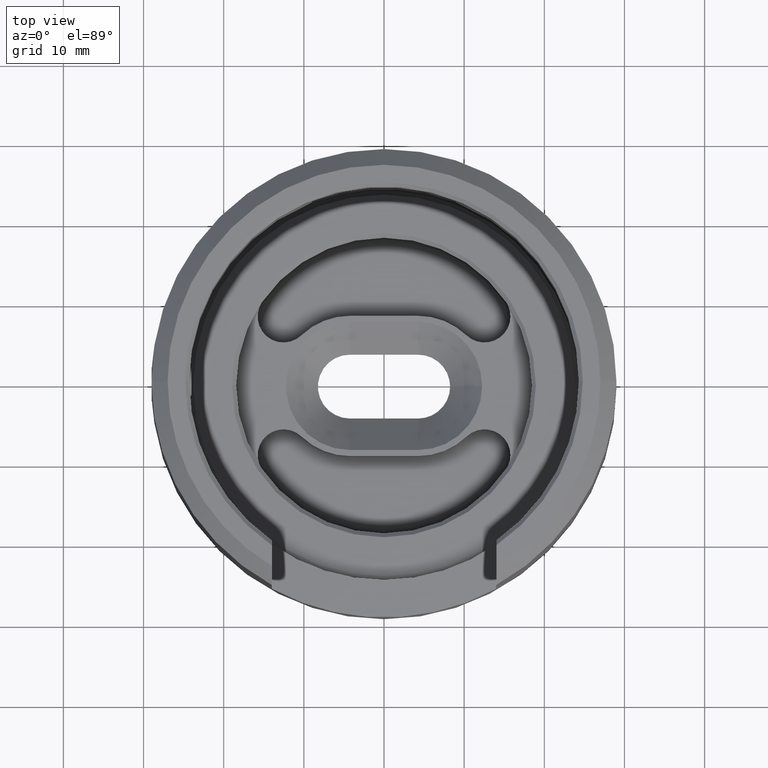
[diagram: clean part render]
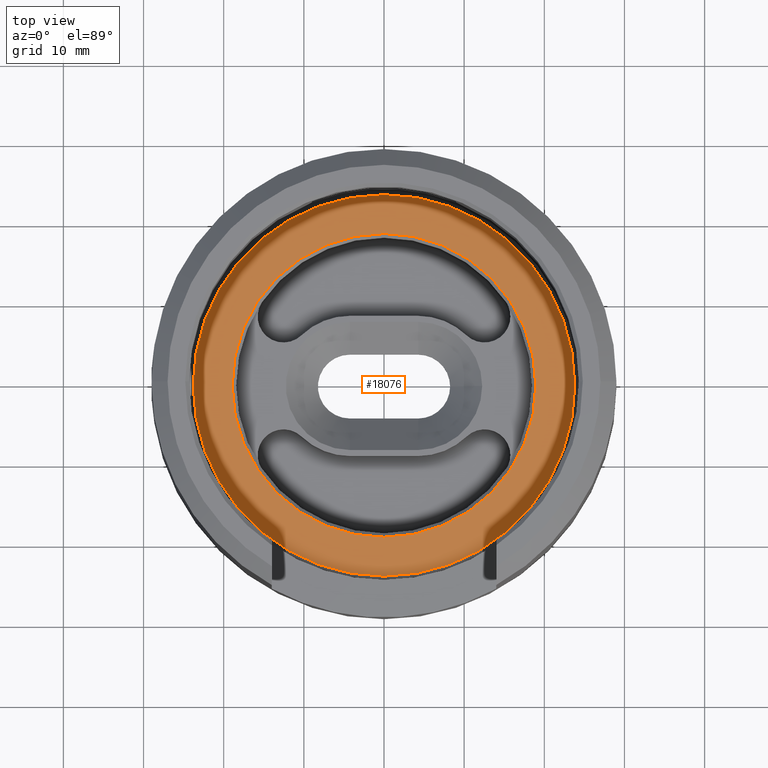
[diagram: same view with one face highlighted and labeled with its STEP entity id]
A machine part, top view. The second image highlights one B-rep face of the part: STEP entity #18076.
In plain terms, the highlighted planar face has unit normal (0, 0, -1).
Its self-contained STEP definition (entity closure, byte-faithful):
#550 = CIRCLE ( 'NONE', #20600, 18.95000000000001700 ) ;
#570 = DIRECTION ( 'NONE',  ( -1.000000000000000000, 0.0000000000000000000, 0.0000000000000000000 ) ) ;
#2437 = DIRECTION ( 'NONE',  ( -1.000000000000000000, 0.0000000000000000000, 0.0000000000000000000 ) ) ;
#2446 = CARTESIAN_POINT ( 'NONE',  ( -18.95000000000001700, 2.320705684384235900E-015, 5.000000000000003600 ) ) ;
#4043 = FACE_OUTER_BOUND ( 'NONE', #10626, .T. ) ;
#4356 = CIRCLE ( 'NONE', #18513, 23.80000000000000400 ) ;
#4593 = DIRECTION ( 'NONE',  ( 0.0000000000000000000, 0.0000000000000000000, -1.000000000000000000 ) ) ;
#5136 = DIRECTION ( 'NONE',  ( 0.0000000000000000000, 0.0000000000000000000, -1.000000000000000000 ) ) ;
#6363 = VERTEX_POINT ( 'NONE', #13090 ) ;
#6569 = CARTESIAN_POINT ( 'NONE',  ( 0.0000000000000000000, 0.0000000000000000000, 5.000000000000003600 ) ) ;
#6813 = DIRECTION ( 'NONE',  ( -0.0000000000000000000, -0.0000000000000000000, 1.000000000000000000 ) ) ;
#7720 = VERTEX_POINT ( 'NONE', #2446 ) ;
#8455 = ORIENTED_EDGE ( 'NONE', *, *, #25423, .T. ) ;
#8634 = DIRECTION ( 'NONE',  ( 0.0000000000000000000, 0.0000000000000000000, -1.000000000000000000 ) ) ;
#10118 = DIRECTION ( 'NONE',  ( -0.0000000000000000000, -0.0000000000000000000, 1.000000000000000000 ) ) ;
#10626 = EDGE_LOOP ( 'NONE', ( #16563, #8455 ) ) ;
#12765 = AXIS2_PLACEMENT_3D ( 'NONE', #23989, #4593, #21745 ) ;
#13090 = CARTESIAN_POINT ( 'NONE',  ( 18.95000000000001700, 0.0000000000000000000, 5.000000000000003600 ) ) ;
#13101 = DIRECTION ( 'NONE',  ( -1.000000000000000000, 0.0000000000000000000, 0.0000000000000000000 ) ) ;
#14511 = AXIS2_PLACEMENT_3D ( 'NONE', #17413, #6813, #13101 ) ;
#14963 = ORIENTED_EDGE ( 'NONE', *, *, #26601, .T. ) ;
#15168 = VERTEX_POINT ( 'NONE', #26523 ) ;
#16563 = ORIENTED_EDGE ( 'NONE', *, *, #17892, .T. ) ;
#16671 = EDGE_LOOP ( 'NONE', ( #14963, #21050 ) ) ;
#17413 = CARTESIAN_POINT ( 'NONE',  ( 0.0000000000000000000, 0.0000000000000000000, 5.000000000000003600 ) ) ;
#17892 = EDGE_CURVE ( 'NONE', #15168, #24258, #4356, .T. ) ;
#17981 = CARTESIAN_POINT ( 'NONE',  ( 0.0000000000000000000, 0.0000000000000000000, 5.000000000000003600 ) ) ;
#18076 = ADVANCED_FACE ( 'NONE', ( #4043, #20458 ), #23901, .F. ) ;
#18115 = EDGE_CURVE ( 'NONE', #7720, #6363, #26832, .T. ) ;
#18513 = AXIS2_PLACEMENT_3D ( 'NONE', #24958, #10118, #27293 ) ;
#20458 = FACE_BOUND ( 'NONE', #16671, .T. ) ;
#20600 = AXIS2_PLACEMENT_3D ( 'NONE', #17981, #5136, #570 ) ;
#21050 = ORIENTED_EDGE ( 'NONE', *, *, #18115, .T. ) ;
#21711 = CIRCLE ( 'NONE', #14511, 23.80000000000000400 ) ;
#21745 = DIRECTION ( 'NONE',  ( -1.000000000000000000, 0.0000000000000000000, -0.0000000000000000000 ) ) ;
#22106 = CARTESIAN_POINT ( 'NONE',  ( 23.80000000000000400, 2.945275551949385000E-015, 5.000000000000003600 ) ) ;
#23724 = AXIS2_PLACEMENT_3D ( 'NONE', #6569, #8634, #2437 ) ;
#23901 = PLANE ( 'NONE',  #12765 ) ;
#23989 = CARTESIAN_POINT ( 'NONE',  ( 0.0000000000000000000, 24.30000000000000100, 5.000000000000003600 ) ) ;
#24258 = VERTEX_POINT ( 'NONE', #22106 ) ;
#24958 = CARTESIAN_POINT ( 'NONE',  ( 0.0000000000000000000, 0.0000000000000000000, 5.000000000000003600 ) ) ;
#25423 = EDGE_CURVE ( 'NONE', #24258, #15168, #21711, .T. ) ;
#26523 = CARTESIAN_POINT ( 'NONE',  ( -23.80000000000000400, 0.0000000000000000000, 5.000000000000003600 ) ) ;
#26601 = EDGE_CURVE ( 'NONE', #6363, #7720, #550, .T. ) ;
#26832 = CIRCLE ( 'NONE', #23724, 18.95000000000001700 ) ;
#27293 = DIRECTION ( 'NONE',  ( -1.000000000000000000, 0.0000000000000000000, 0.0000000000000000000 ) ) ;